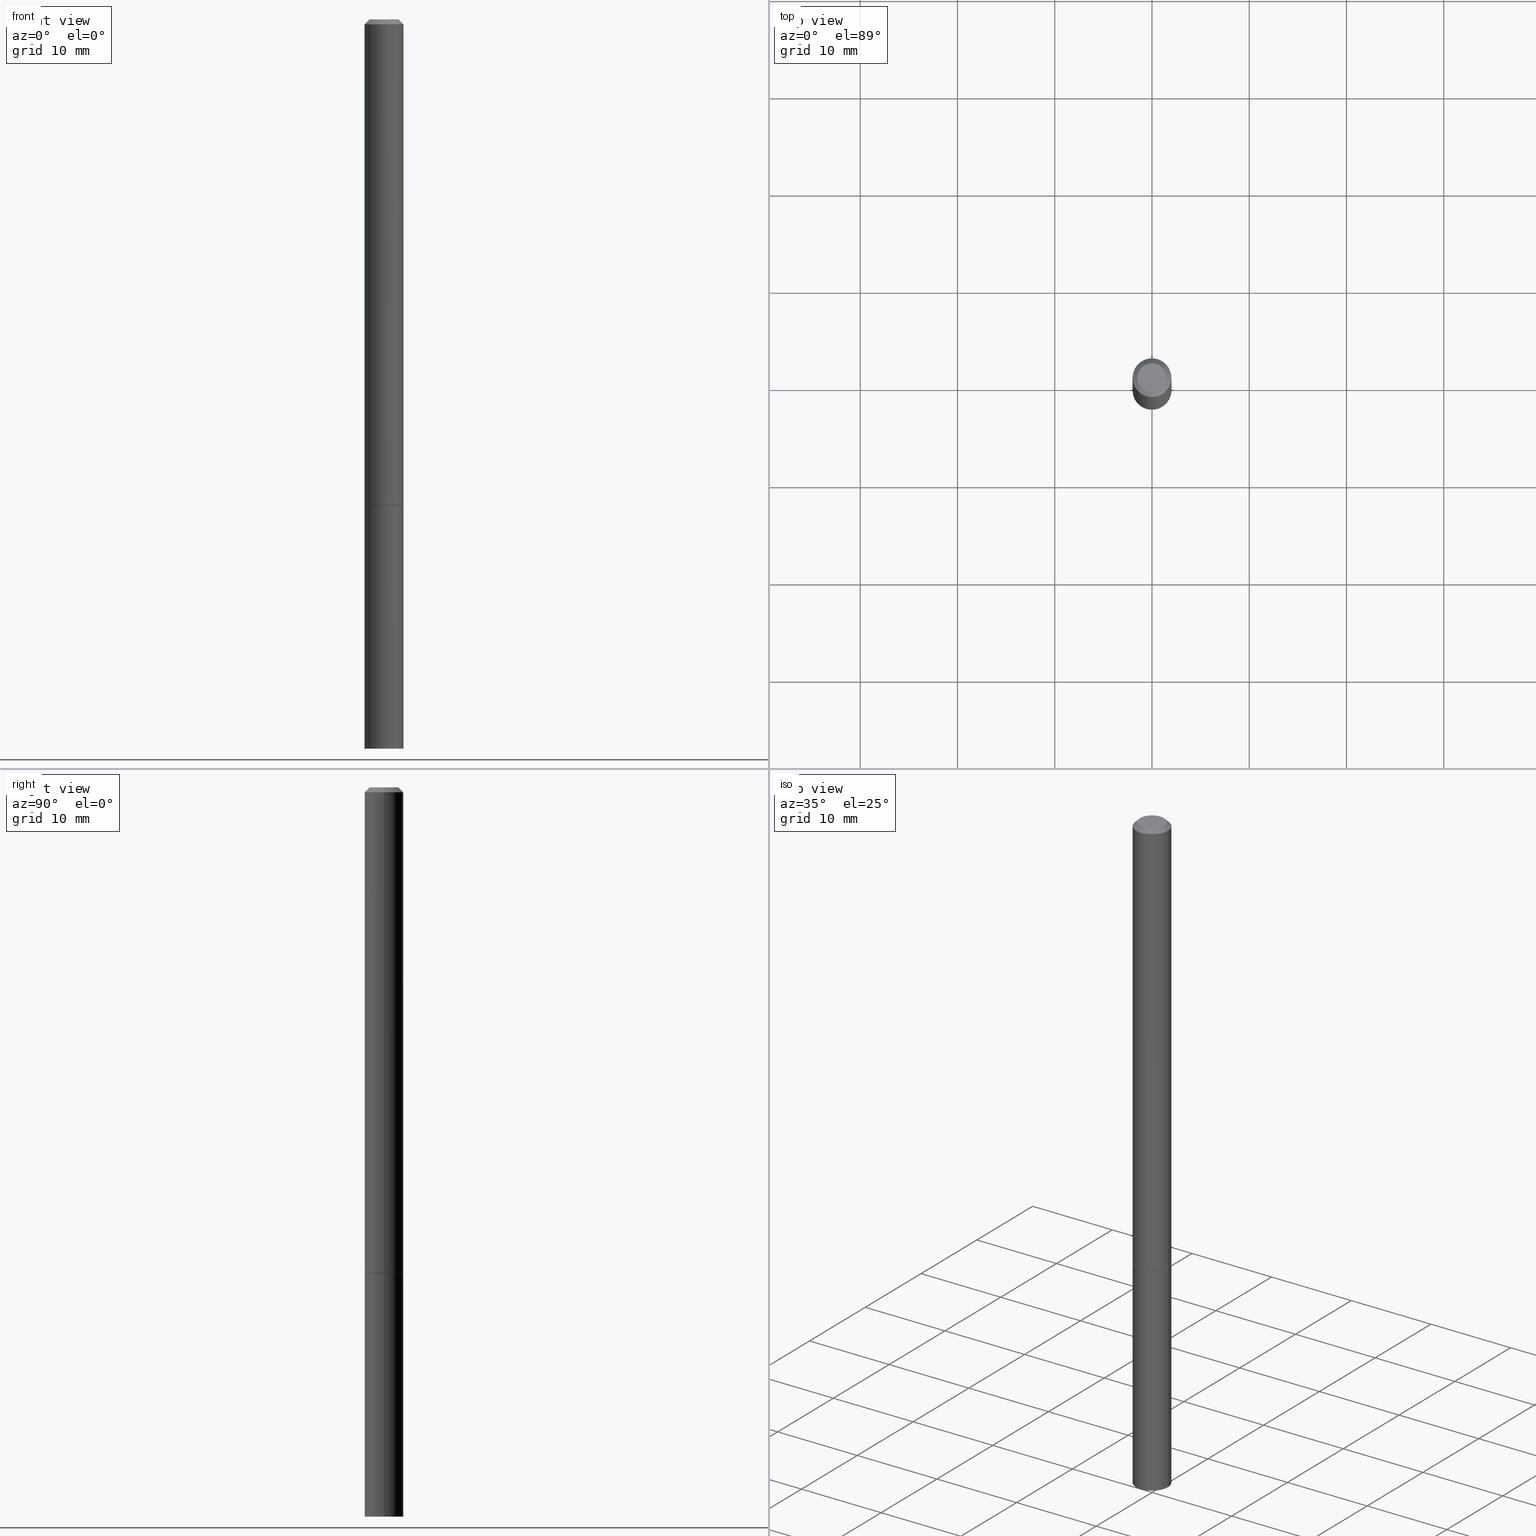
[diagram: canonical four-view strip — front | top / right | iso, engineering-drawing reading convention]
A machine part, canonical four-view strip (front | top / right | iso — engineering-drawing reading convention). The complete STEP part file that produces these views, byte-faithful:
ISO-10303-21;
HEADER;
FILE_DESCRIPTION (( 'STEP AP203' ),
    '1' );
FILE_NAME ('49415.STEP',
    '2024-02-28T19:48:44',
    ( '' ),
    ( '' ),
    'SwSTEP 2.0',
    'SolidWorks 2023',
    '' );
FILE_SCHEMA (( 'CONFIG_CONTROL_DESIGN' ));
ENDSEC;

DATA;
#1 = DIRECTION ( 'NONE',  ( -2.445468806185136597E-29, 3.491481338843145583E-15, 1.000000000000000000 ) ) ;
#2 = EDGE_CURVE ( 'NONE', #311, #247, #76, .T. ) ;
#3 = DIRECTION ( 'NONE',  ( -2.445468806185136597E-29, 3.491481338843145583E-15, 1.000000000000000000 ) ) ;
#4 = DIRECTION ( 'NONE',  ( 1.000000000000000000, -6.982962677686261977E-15, 0.000000000000000000 ) ) ;
#5 = VECTOR ( 'NONE', #321, 39.37007874015748143 ) ;
#6 = CARTESIAN_POINT ( 'NONE',  ( 0.07875000000000000056, -7.419397845041680468E-15, -1.967499999999999805 ) ) ;
#7 = APPLICATION_CONTEXT ( 'configuration controlled 3d designs of mechanical parts and assemblies' ) ;
#8 = VECTOR ( 'NONE', #153, 39.37007874015748143 ) ;
#9 = PERSON ( 'UNSPECIFIED', 'UNSPECIFIED', 'UNSPECIFIED', ('UNSPECIFIED'), ('UNSPECIFIED'), ('UNSPECIFIED') ) ;
#10 = DIRECTION ( 'NONE',  ( 1.000000000000000000, -6.982962677686261977E-15, 0.000000000000000000 ) ) ;
#11 = EDGE_CURVE ( 'NONE', #247, #311, #126, .T. ) ;
#12 = DIRECTION ( 'NONE',  ( 1.000000000000000000, -6.982962677686266711E-15, 0.000000000000000000 ) ) ;
#13 = VERTEX_POINT ( 'NONE', #6 ) ;
#14 = PERSON_AND_ORGANIZATION ( #9, #259 ) ;
#15 = DIRECTION ( 'NONE',  ( -2.445468806185136877E-29, 3.491481338843145188E-15, 1.000000000000000000 ) ) ;
#16 = AXIS2_PLACEMENT_3D ( 'NONE', #339, #364, #292 ) ;
#17 = LOCAL_TIME ( 14, 48, 44.00000000000000000, #366 ) ;
#18 = ORIENTED_EDGE ( 'NONE', *, *, #230, .F. ) ;
#19 = CC_DESIGN_DATE_AND_TIME_ASSIGNMENT ( #33, #67, ( #303 ) ) ;
#20 = DIRECTION ( 'NONE',  ( 1.000000000000000000, 0.000000000000000000, 0.000000000000000000 ) ) ;
#21 = CARTESIAN_POINT ( 'NONE',  ( 0.07774999999999999967, -7.415906363702837461E-15, -1.968499999999999694 ) ) ;
#22 = FACE_OUTER_BOUND ( 'NONE', #132, .T. ) ;
#23 = CLOSED_SHELL ( 'NONE', ( #185, #78, #249, #238 ) ) ;
#24 = CIRCLE ( 'NONE', #323, 0.07875000000000000056 ) ;
#25 = LOCAL_TIME ( 14, 48, 44.00000000000000000, #361 ) ;
#26 = DIRECTION ( 'NONE',  ( -2.445468806185136877E-29, 3.491481338843145188E-15, 1.000000000000000000 ) ) ;
#27 = DATE_AND_TIME ( #176, #25 ) ;
#28 = APPROVAL_STATUS ( 'not_yet_approved' ) ;
#29 = VECTOR ( 'NONE', #26, 39.37007874015748143 ) ;
#30 = CARTESIAN_POINT ( 'NONE',  ( 0.05874999999999976769, -5.065740507352226296E-16, 3.205406768517973136E-30 ) ) ;
#31 = DATE_AND_TIME ( #35, #320 ) ;
#32 = CARTESIAN_POINT ( 'NONE',  ( -0.07774999999999999967, -6.320534038459253125E-15, -1.968499999999999694 ) ) ;
#33 = DATE_AND_TIME ( #72, #255 ) ;
#34 = DIRECTION ( 'NONE',  ( 1.000000000000000000, -6.982962677686266711E-15, 4.876176775795935793E-29 ) ) ;
#35 = CALENDAR_DATE ( 2024, 28, 2 ) ;
#36 = EDGE_CURVE ( 'NONE', #108, #80, #325, .T. ) ;
#37 = EDGE_LOOP ( 'NONE', ( #188, #18 ) ) ;
#38 = AXIS2_PLACEMENT_3D ( 'NONE', #91, #207, #83 ) ;
#39 = COORDINATED_UNIVERSAL_TIME_OFFSET ( 5, 0, .BEHIND. ) ;
#40 = FACE_OUTER_BOUND ( 'NONE', #160, .T. ) ;
#41 = CARTESIAN_POINT ( 'NONE',  ( 4.813905344975440714E-29, -6.872981015512730918E-15, -1.968499999999999694 ) ) ;
#42 = LENGTH_MEASURE_WITH_UNIT ( LENGTH_MEASURE( 0.02539999999999999897 ), #209 );
#43 = EDGE_LOOP ( 'NONE', ( #245, #197, #74, #355 ) ) ;
#44 = ORIENTED_EDGE ( 'NONE', *, *, #137, .T. ) ;
#45 = ORIENTED_EDGE ( 'NONE', *, *, #2, .F. ) ;
#46 = EDGE_CURVE ( 'NONE', #252, #70, #349, .T. ) ;
#47 = EDGE_CURVE ( 'NONE', #70, #68, #220, .T. ) ;
#48 = DIRECTION ( 'NONE',  ( 0.7071067811865232589, -2.468850131082003836E-15, 0.7071067811865715536 ) ) ;
#49 = VERTEX_POINT ( 'NONE', #99 ) ;
#50 = ADVANCED_FACE ( 'NONE', ( #129 ), #192, .F. ) ;
#51 = ORIENTED_EDGE ( 'NONE', *, *, #147, .F. ) ;
#52 = AXIS2_PLACEMENT_3D ( 'NONE', #180, #3, #124 ) ;
#53 = APPROVAL_PERSON_ORGANIZATION ( #14, #344, #92 ) ;
#54 = FACE_OUTER_BOUND ( 'NONE', #79, .T. ) ;
#55 = DIMENSIONAL_EXPONENTS ( 1.000000000000000000, 0.000000000000000000, 0.000000000000000000, 0.000000000000000000, 0.000000000000000000, 0.000000000000000000, 0.000000000000000000 ) ;
#56 = CARTESIAN_POINT ( 'NONE',  ( 4.811459876169255671E-29, -6.869489534173887122E-15, -1.967499999999999805 ) ) ;
#57 = CARTESIAN_POINT ( 'NONE',  ( -0.07875000000000000056, -2.910107176064290492E-15, -1.967499999999999805 ) ) ;
#58 = LOCAL_TIME ( 14, 48, 44.00000000000000000, #114 ) ;
#59 = PLANE ( 'NONE',  #358 ) ;
#60 = PERSON_AND_ORGANIZATION_ROLE ( 'design_supplier' ) ;
#61 = CARTESIAN_POINT ( 'NONE',  ( 0.07874999999999973688, -6.100938441013694129E-16, -0.02000000000000001776 ) ) ;
#62 = EDGE_CURVE ( 'NONE', #13, #252, #161, .T. ) ;
#63 = CARTESIAN_POINT ( 'NONE',  ( 4.813905344975440714E-29, -6.872981015512730918E-15, -1.968499999999999694 ) ) ;
#64 = CIRCLE ( 'NONE', #199, 0.07774999999999999967 ) ;
#65 = CARTESIAN_POINT ( 'NONE',  ( 0.000000000000000000, 0.000000000000000000, 0.000000000000000000 ) ) ;
#66 = EDGE_CURVE ( 'NONE', #68, #70, #121, .T. ) ;
#67 = DATE_TIME_ROLE ( 'classification_date' ) ;
#68 = VERTEX_POINT ( 'NONE', #280 ) ;
#69 = PLANE ( 'NONE',  #283 ) ;
#70 = VERTEX_POINT ( 'NONE', #110 ) ;
#71 = AXIS2_PLACEMENT_3D ( 'NONE', #85, #177, #319 ) ;
#72 = CALENDAR_DATE ( 2024, 28, 2 ) ;
#73 = CARTESIAN_POINT ( 'NONE',  ( -0.07774999999999999967, -6.315235584111030723E-15, -1.968499999999999694 ) ) ;
#74 = ORIENTED_EDGE ( 'NONE', *, *, #260, .F. ) ;
#75 = ORIENTED_EDGE ( 'NONE', *, *, #11, .T. ) ;
#76 = CIRCLE ( 'NONE', #288, 0.05874999999999976769 ) ;
#77 =( GEOMETRIC_REPRESENTATION_CONTEXT ( 3 ) GLOBAL_UNCERTAINTY_ASSIGNED_CONTEXT ( ( #131 ) ) GLOBAL_UNIT_ASSIGNED_CONTEXT ( ( #133, #104, #327 ) ) REPRESENTATION_CONTEXT ( 'NONE', 'WORKASPACE' ) );
#78 = ADVANCED_FACE ( 'NONE', ( #282 ), #228, .T. ) ;
#79 = EDGE_LOOP ( 'NONE', ( #227, #328, #279, #217 ) ) ;
#80 = VERTEX_POINT ( 'NONE', #109 ) ;
#81 = VECTOR ( 'NONE', #15, 39.37007874015748143 ) ;
#82 = DIRECTION ( 'NONE',  ( 1.000000000000000000, -6.982962677686265922E-15, 4.876176775795935793E-29 ) ) ;
#83 = DIRECTION ( 'NONE',  ( 1.000000000000000000, -6.982962677686265922E-15, 4.876176775795935232E-29 ) ) ;
#84 = MANIFOLD_SOLID_BREP ( 'Body-Move/Copy2[1]', #23 ) ;
#85 = CARTESIAN_POINT ( 'NONE',  ( 0.000000000000000000, 0.000000000000000000, 0.000000000000000000 ) ) ;
#86 = MANIFOLD_SOLID_BREP ( 'Body-Move/Copy2[2]', #93 ) ;
#87 = PERSON_AND_ORGANIZATION ( #9, #259 ) ;
#88 = CONICAL_SURFACE ( 'NONE', #242, 0.07774999999999999967, 0.7853981633974141952 ) ;
#89 = CARTESIAN_POINT ( 'NONE',  ( 5.499083108678415648E-16, 0.07874999999999311717, -1.968500000000000139 ) ) ;
#90 = CC_DESIGN_PERSON_AND_ORGANIZATION_ASSIGNMENT ( #293, #149, ( #303 ) ) ;
#91 = CARTESIAN_POINT ( 'NONE',  ( 0.000000000000000000, 0.000000000000000000, 0.000000000000000000 ) ) ;
#92 = APPROVAL_ROLE ( '' ) ;
#93 = CLOSED_SHELL ( 'NONE', ( #178, #202, #113, #309, #127, #265, #50, #294 ) ) ;
#94 = APPROVAL_PERSON_ORGANIZATION ( #120, #223, #143 ) ;
#95 = DIRECTION ( 'NONE',  ( -1.000000000000000000, 6.982962677686266711E-15, 0.000000000000000000 ) ) ;
#96 = EDGE_CURVE ( 'NONE', #225, #356, #64, .T. ) ;
#97 = DIRECTION ( 'NONE',  ( -2.445468806185136597E-29, 3.491481338843145583E-15, 1.000000000000000000 ) ) ;
#98 = CARTESIAN_POINT ( 'NONE',  ( 4.890937612370276662E-31, -6.982962677686296539E-17, -0.02000000000000001776 ) ) ;
#99 = CARTESIAN_POINT ( 'NONE',  ( 0.07875000000000000056, -7.422889326380523475E-15, -1.968499999999999694 ) ) ;
#100 = CIRCLE ( 'NONE', #155, 0.07774999999999999967 ) ;
#101 = CIRCLE ( 'NONE', #16, 0.07875000000000000056 ) ;
#102 = ORIENTED_EDGE ( 'NONE', *, *, #66, .F. ) ;
#103 = EDGE_CURVE ( 'NONE', #225, #13, #200, .T. ) ;
#104 =( NAMED_UNIT ( * ) PLANE_ANGLE_UNIT ( ) SI_UNIT ( $, .RADIAN. ) );
#105 = EDGE_LOOP ( 'NONE', ( #164, #276 ) ) ;
#106 = DIRECTION ( 'NONE',  ( 1.000000000000000000, -6.982962677686266711E-15, 4.876176775795935793E-29 ) ) ;
#107 = ORIENTED_EDGE ( 'NONE', *, *, #96, .F. ) ;
#108 = VERTEX_POINT ( 'NONE', #139 ) ;
#109 = CARTESIAN_POINT ( 'NONE',  ( -0.07875000000000000056, -8.031761152013305527E-15, -1.968499999999999694 ) ) ;
#110 = CARTESIAN_POINT ( 'NONE',  ( -0.07874999999999973688, 4.800786840909286670E-16, -0.02000000000000001776 ) ) ;
#111 = DESIGN_CONTEXT ( 'detailed design', #7, 'design' ) ;
#112 = AXIS2_PLACEMENT_3D ( 'NONE', #351, #215, #95 ) ;
#113 = ADVANCED_FACE ( 'NONE', ( #54 ), #236, .T. ) ;
#114 = COORDINATED_UNIVERSAL_TIME_OFFSET ( 5, 0, .BEHIND. ) ;
#115 = DIRECTION ( 'NONE',  ( 1.000000000000000000, -6.982962677686266711E-15, 0.000000000000000000 ) ) ;
#116 = PERSON_AND_ORGANIZATION_ROLE ( 'creator' ) ;
#117 = DIRECTION ( 'NONE',  ( 1.000000000000000000, -6.982962677686261977E-15, 0.000000000000000000 ) ) ;
#118 = DATE_AND_TIME ( #146, #17 ) ;
#119 = FACE_OUTER_BOUND ( 'NONE', #216, .T. ) ;
#120 = PERSON_AND_ORGANIZATION ( #9, #259 ) ;
#121 = CIRCLE ( 'NONE', #167, 0.07874999999999973688 ) ;
#122 = CC_DESIGN_APPROVAL ( #204, ( #284 ) ) ;
#123 = CALENDAR_DATE ( 2024, 28, 2 ) ;
#124 = DIRECTION ( 'NONE',  ( 1.000000000000000000, -6.982962677686261977E-15, 0.000000000000000000 ) ) ;
#125 = COORDINATED_UNIVERSAL_TIME_OFFSET ( 5, 0, .BEHIND. ) ;
#126 = CIRCLE ( 'NONE', #330, 0.05874999999999976769 ) ;
#127 = ADVANCED_FACE ( 'NONE', ( #22 ), #142, .T. ) ;
#128 = CARTESIAN_POINT ( 'NONE',  ( -0.07874999999999987566, 5.595524044110780128E-16, -3.873661383575732186E-30 ) ) ;
#129 = FACE_OUTER_BOUND ( 'NONE', #248, .T. ) ;
#130 = ORIENTED_EDGE ( 'NONE', *, *, #96, .T. ) ;
#131 = UNCERTAINTY_MEASURE_WITH_UNIT (LENGTH_MEASURE( 1.000000000000000082E-05 ), #133, 'distance_accuracy_value', 'NONE');
#132 = EDGE_LOOP ( 'NONE', ( #304, #44, #194, #138 ) ) ;
#133 =( CONVERSION_BASED_UNIT ( 'INCH', #42 ) LENGTH_UNIT ( ) NAMED_UNIT ( #55 ) );
#134 = CONICAL_SURFACE ( 'NONE', #52, 0.07774999999999999967, 0.7853981633974141952 ) ;
#135 = ORIENTED_EDGE ( 'NONE', *, *, #211, .F. ) ;
#136 = ORIENTED_EDGE ( 'NONE', *, *, #170, .F. ) ;
#137 = EDGE_CURVE ( 'NONE', #252, #13, #24, .T. ) ;
#138 = ORIENTED_EDGE ( 'NONE', *, *, #47, .F. ) ;
#139 = CARTESIAN_POINT ( 'NONE',  ( -0.07875000000000000056, -8.031761152013305527E-15, -2.952799999999999869 ) ) ;
#140 = CIRCLE ( 'NONE', #353, 0.07875000000000000056 ) ;
#141 = ADVANCED_BREP_SHAPE_REPRESENTATION ( '49415', ( #84, #86, #221 ), #77 ) ;
#142 = CYLINDRICAL_SURFACE ( 'NONE', #71, 0.07874999999999987566 ) ;
#143 = APPROVAL_ROLE ( '' ) ;
#144 = AXIS2_PLACEMENT_3D ( 'NONE', #269, #342, #117 ) ;
#145 = CYLINDRICAL_SURFACE ( 'NONE', #253, 0.07875000000000000056 ) ;
#146 = CALENDAR_DATE ( 2024, 28, 2 ) ;
#147 = EDGE_CURVE ( 'NONE', #13, #68, #289, .T. ) ;
#148 = DIRECTION ( 'NONE',  ( 1.000000000000000000, -6.982962677686261977E-15, 0.000000000000000000 ) ) ;
#149 = PERSON_AND_ORGANIZATION_ROLE ( 'classification_officer' ) ;
#150 = DIRECTION ( 'NONE',  ( 1.000000000000000000, -6.982962677686266711E-15, 4.876176775795935793E-29 ) ) ;
#151 = AXIS2_PLACEMENT_3D ( 'NONE', #237, #233, #150 ) ;
#152 = DIRECTION ( 'NONE',  ( -2.445468806185136597E-29, 3.491481338843145583E-15, 1.000000000000000000 ) ) ;
#153 = DIRECTION ( 'NONE',  ( -0.7071067811865467956, 2.468850131082249172E-15, -0.7071067811865482389 ) ) ;
#154 = ORIENTED_EDGE ( 'NONE', *, *, #36, .F. ) ;
#155 = AXIS2_PLACEMENT_3D ( 'NONE', #313, #1, #264 ) ;
#156 = ORIENTED_EDGE ( 'NONE', *, *, #281, .F. ) ;
#157 = ORIENTED_EDGE ( 'NONE', *, *, #62, .F. ) ;
#158 = CARTESIAN_POINT ( 'NONE',  ( -0.05874999999999976769, 4.451638707024976095E-16, -2.990994270918715236E-30 ) ) ;
#159 = ORIENTED_EDGE ( 'NONE', *, *, #2, .T. ) ;
#160 = EDGE_LOOP ( 'NONE', ( #159, #75 ) ) ;
#161 = CIRCLE ( 'NONE', #266, 0.07875000000000000056 ) ;
#162 = EDGE_LOOP ( 'NONE', ( #130, #218, #157, #326 ) ) ;
#163 = DIRECTION ( 'NONE',  ( -2.445468806185136597E-29, 3.491481338843145583E-15, 1.000000000000000000 ) ) ;
#164 = ORIENTED_EDGE ( 'NONE', *, *, #260, .T. ) ;
#165 = PRODUCT_DEFINITION_SHAPE ( 'NONE', 'NONE',  #290 ) ;
#166 = CARTESIAN_POINT ( 'NONE',  ( 4.890937612370276662E-31, -6.982962677686296539E-17, -0.02000000000000001776 ) ) ;
#167 = AXIS2_PLACEMENT_3D ( 'NONE', #166, #360, #115 ) ;
#168 = MECHANICAL_CONTEXT ( 'NONE', #357, 'mechanical' ) ;
#169 = CARTESIAN_POINT ( 'NONE',  ( 4.890937612370276662E-31, -6.982962677686296539E-17, -0.02000000000000001776 ) ) ;
#170 = EDGE_CURVE ( 'NONE', #247, #68, #261, .T. ) ;
#171 = DIRECTION ( 'NONE',  ( -2.445468806185136597E-29, 3.491481338843145583E-15, 1.000000000000000000 ) ) ;
#172 = CARTESIAN_POINT ( 'NONE',  ( 4.813905344975440714E-29, -6.872981015512730918E-15, -1.968499999999999694 ) ) ;
#173 = VECTOR ( 'NONE', #244, 39.37007874015748143 ) ;
#174 = AXIS2_PLACEMENT_3D ( 'NONE', #98, #277, #12 ) ;
#175 = CC_DESIGN_APPROVAL ( #223, ( #290 ) ) ;
#176 = CALENDAR_DATE ( 2024, 28, 2 ) ;
#177 = DIRECTION ( 'NONE',  ( -2.445468806185136597E-29, 3.491481338843145583E-15, 1.000000000000000000 ) ) ;
#178 = ADVANCED_FACE ( 'NONE', ( #347 ), #134, .T. ) ;
#179 = PERSON_AND_ORGANIZATION ( #9, #259 ) ;
#180 = CARTESIAN_POINT ( 'NONE',  ( 4.813905344975440714E-29, -6.872981015512730918E-15, -1.968499999999999694 ) ) ;
#181 = EDGE_LOOP ( 'NONE', ( #154, #251, #333, #156 ) ) ;
#182 = SECURITY_CLASSIFICATION_LEVEL ( 'unclassified' ) ;
#183 = DIRECTION ( 'NONE',  ( -2.445468806185136597E-29, 3.491481338843145583E-15, 1.000000000000000000 ) ) ;
#184 = CARTESIAN_POINT ( 'NONE',  ( 4.811459876169255671E-29, -6.869489534173887122E-15, -1.967499999999999805 ) ) ;
#185 = ADVANCED_FACE ( 'NONE', ( #203 ), #145, .T. ) ;
#186 = DIRECTION ( 'NONE',  ( -2.445468806185136597E-29, 3.491481338843145583E-15, 1.000000000000000000 ) ) ;
#187 = CARTESIAN_POINT ( 'NONE',  ( 0.07875000000000000056, -1.085955440820383187E-14, -2.952799999999999869 ) ) ;
#188 = ORIENTED_EDGE ( 'NONE', *, *, #195, .F. ) ;
#189 = APPROVAL_DATE_TIME ( #31, #344 ) ;
#190 = DIRECTION ( 'NONE',  ( -1.000000000000000000, 6.982962677686265922E-15, -4.876176775795935793E-29 ) ) ;
#191 = CC_DESIGN_SECURITY_CLASSIFICATION ( #303, ( #284 ) ) ;
#192 = PLANE ( 'NONE',  #302 ) ;
#193 = ORIENTED_EDGE ( 'NONE', *, *, #316, .T. ) ;
#194 = ORIENTED_EDGE ( 'NONE', *, *, #147, .T. ) ;
#195 = EDGE_CURVE ( 'NONE', #352, #108, #315, .T. ) ;
#196 = DIRECTION ( 'NONE',  ( -2.438088387897960049E-29, 3.491481338843145188E-15, 1.000000000000000000 ) ) ;
#197 = ORIENTED_EDGE ( 'NONE', *, *, #36, .T. ) ;
#198 = DIRECTION ( 'NONE',  ( 0.000000000000000000, 0.000000000000000000, 1.000000000000000000 ) ) ;
#199 = AXIS2_PLACEMENT_3D ( 'NONE', #329, #163, #331 ) ;
#200 = LINE ( 'NONE', #21, #312 ) ;
#201 = DIRECTION ( 'NONE',  ( -0.7071067811865232589, 7.493145998870265808E-15, 0.7071067811865715536 ) ) ;
#202 = ADVANCED_FACE ( 'NONE', ( #270 ), #295, .T. ) ;
#203 = FACE_OUTER_BOUND ( 'NONE', #43, .T. ) ;
#204 = APPROVAL ( #28, 'UNSPECIFIED' ) ;
#205 = CIRCLE ( 'NONE', #365, 0.07875000000000000056 ) ;
#206 = DIRECTION ( 'NONE',  ( 1.000000000000000000, -6.982962677686265922E-15, 4.876176775795935232E-29 ) ) ;
#207 = DIRECTION ( 'NONE',  ( -2.445468806185136597E-29, 3.491481338843145583E-15, 1.000000000000000000 ) ) ;
#208 = CARTESIAN_POINT ( 'NONE',  ( -0.07874999999999973688, 4.800786840909286670E-16, -0.02000000000000001776 ) ) ;
#209 =( LENGTH_UNIT ( ) NAMED_UNIT ( * ) SI_UNIT ( $, .METRE. ) );
#210 = ORIENTED_EDGE ( 'NONE', *, *, #103, .T. ) ;
#211 = EDGE_CURVE ( 'NONE', #356, #225, #100, .T. ) ;
#212 = SHAPE_DEFINITION_REPRESENTATION ( #165, #141 ) ;
#213 = ORIENTED_EDGE ( 'NONE', *, *, #211, .T. ) ;
#214 = AXIS2_PLACEMENT_3D ( 'NONE', #169, #286, #254 ) ;
#215 = DIRECTION ( 'NONE',  ( 2.445468806185136597E-29, -3.491481338843145583E-15, -1.000000000000000000 ) ) ;
#216 = EDGE_LOOP ( 'NONE', ( #299, #213, #210, #359 ) ) ;
#217 = ORIENTED_EDGE ( 'NONE', *, *, #316, .F. ) ;
#218 = ORIENTED_EDGE ( 'NONE', *, *, #226, .T. ) ;
#219 = DIRECTION ( 'NONE',  ( -2.445468806185136597E-29, 3.491481338843145583E-15, 1.000000000000000000 ) ) ;
#220 = CIRCLE ( 'NONE', #174, 0.07874999999999973688 ) ;
#221 = AXIS2_PLACEMENT_3D ( 'NONE', #310, #198, #20 ) ;
#222 = DIRECTION ( 'NONE',  ( -1.000000000000000000, 6.982962677686265922E-15, -4.876176775795935793E-29 ) ) ;
#223 = APPROVAL ( #268, 'UNSPECIFIED' ) ;
#224 = CC_DESIGN_APPROVAL ( #344, ( #303 ) ) ;
#225 = VERTEX_POINT ( 'NONE', #239 ) ;
#226 = EDGE_CURVE ( 'NONE', #356, #252, #231, .T. ) ;
#227 = ORIENTED_EDGE ( 'NONE', *, *, #11, .F. ) ;
#228 = PLANE ( 'NONE',  #308 ) ;
#229 = PERSON_AND_ORGANIZATION ( #9, #259 ) ;
#230 = EDGE_CURVE ( 'NONE', #108, #352, #101, .T. ) ;
#231 = LINE ( 'NONE', #32, #267 ) ;
#232 = APPROVAL_DATE_TIME ( #263, #204 ) ;
#233 = DIRECTION ( 'NONE',  ( -2.445468806185136597E-29, 3.491481338843145583E-15, 1.000000000000000000 ) ) ;
#234 = DATE_TIME_ROLE ( 'creation_date' ) ;
#235 = DIRECTION ( 'NONE',  ( -2.445468806185136597E-29, 3.491481338843145583E-15, 1.000000000000000000 ) ) ;
#236 = CONICAL_SURFACE ( 'NONE', #214, 0.07874999999999973688, 0.7853981633974472798 ) ;
#237 = CARTESIAN_POINT ( 'NONE',  ( 0.000000000000000000, 0.000000000000000000, 0.000000000000000000 ) ) ;
#238 = ADVANCED_FACE ( 'NONE', ( #314 ), #337, .T. ) ;
#239 = CARTESIAN_POINT ( 'NONE',  ( 0.07774999999999999967, -7.415906363702837461E-15, -1.968499999999999694 ) ) ;
#240 = CC_DESIGN_PERSON_AND_ORGANIZATION_ASSIGNMENT ( #229, #338, ( #284 ) ) ;
#241 = CARTESIAN_POINT ( 'NONE',  ( 4.102490573140664535E-16, 0.05874999999999976769, -2.051245286570339909E-16 ) ) ;
#242 = AXIS2_PLACEMENT_3D ( 'NONE', #63, #183, #4 ) ;
#243 = CARTESIAN_POINT ( 'NONE',  ( 4.813905344975440714E-29, -6.872981015512730918E-15, -1.968499999999999694 ) ) ;
#244 = DIRECTION ( 'NONE',  ( -2.445468806185136877E-29, 3.491481338843145188E-15, 1.000000000000000000 ) ) ;
#245 = ORIENTED_EDGE ( 'NONE', *, *, #195, .T. ) ;
#246 = FACE_OUTER_BOUND ( 'NONE', #306, .T. ) ;
#247 = VERTEX_POINT ( 'NONE', #30 ) ;
#248 = EDGE_LOOP ( 'NONE', ( #107, #135 ) ) ;
#249 = ADVANCED_FACE ( 'NONE', ( #346 ), #59, .F. ) ;
#250 = CARTESIAN_POINT ( 'NONE',  ( 0.000000000000000000, 0.000000000000000000, 0.000000000000000000 ) ) ;
#251 = ORIENTED_EDGE ( 'NONE', *, *, #230, .T. ) ;
#252 = VERTEX_POINT ( 'NONE', #57 ) ;
#253 = AXIS2_PLACEMENT_3D ( 'NONE', #65, #362, #206 ) ;
#254 = DIRECTION ( 'NONE',  ( -1.000000000000000000, 6.982962677686266711E-15, 0.000000000000000000 ) ) ;
#255 = LOCAL_TIME ( 14, 48, 44.00000000000000000, #125 ) ;
#256 = CC_DESIGN_PERSON_AND_ORGANIZATION_ASSIGNMENT ( #87, #60, ( #284 ) ) ;
#257 = PERSON_AND_ORGANIZATION ( #9, #259 ) ;
#258 = DIRECTION ( 'NONE',  ( 1.000000000000000000, -6.982962677686261977E-15, 0.000000000000000000 ) ) ;
#259 = ORGANIZATION ( 'UNSPECIFIED', 'UNSPECIFIED', '' ) ;
#260 = EDGE_CURVE ( 'NONE', #49, #80, #205, .T. ) ;
#261 = LINE ( 'NONE', #61, #273 ) ;
#262 = DIRECTION ( 'NONE',  ( 1.000000000000000000, -6.982962677686261977E-15, 0.000000000000000000 ) ) ;
#263 = DATE_AND_TIME ( #123, #58 ) ;
#264 = DIRECTION ( 'NONE',  ( 1.000000000000000000, -6.982962677686261977E-15, 0.000000000000000000 ) ) ;
#265 = ADVANCED_FACE ( 'NONE', ( #119 ), #88, .T. ) ;
#266 = AXIS2_PLACEMENT_3D ( 'NONE', #56, #171, #258 ) ;
#267 = VECTOR ( 'NONE', #201, 39.37007874015748854 ) ;
#268 = APPROVAL_STATUS ( 'not_yet_approved' ) ;
#269 = CARTESIAN_POINT ( 'NONE',  ( 7.220980290903470182E-29, -1.030964609733603853E-14, -2.952799999999999869 ) ) ;
#270 = FACE_OUTER_BOUND ( 'NONE', #272, .T. ) ;
#271 = APPROVAL_STATUS ( 'not_yet_approved' ) ;
#272 = EDGE_LOOP ( 'NONE', ( #322, #301, #102, #51 ) ) ;
#273 = VECTOR ( 'NONE', #363, 39.37007874015748143 ) ;
#274 = CC_DESIGN_PERSON_AND_ORGANIZATION_ASSIGNMENT ( #345, #116, ( #290 ) ) ;
#275 = CARTESIAN_POINT ( 'NONE',  ( 0.07875000000000000056, -5.499083108677934443E-16, 3.839989210939299016E-30 ) ) ;
#276 = ORIENTED_EDGE ( 'NONE', *, *, #281, .T. ) ;
#277 = DIRECTION ( 'NONE',  ( -2.445468806185136597E-29, 3.491481338843145583E-15, 1.000000000000000000 ) ) ;
#278 = APPLICATION_PROTOCOL_DEFINITION ( 'international standard', 'config_control_design', 1994, #357 ) ;
#279 = ORIENTED_EDGE ( 'NONE', *, *, #66, .T. ) ;
#280 = CARTESIAN_POINT ( 'NONE',  ( 0.07874999999999973688, -6.100938441013694129E-16, -0.02000000000000001776 ) ) ;
#281 = EDGE_CURVE ( 'NONE', #80, #49, #140, .T. ) ;
#282 = FACE_OUTER_BOUND ( 'NONE', #37, .T. ) ;
#283 = AXIS2_PLACEMENT_3D ( 'NONE', #241, #300, #190 ) ;
#284 = PRODUCT_DEFINITION_FORMATION_WITH_SPECIFIED_SOURCE ( 'ANY', '', #285, .NOT_KNOWN. ) ;
#285 = PRODUCT ( '49415', '49415', '', ( #168 ) ) ;
#286 = DIRECTION ( 'NONE',  ( 2.445468806185136597E-29, -3.491481338843145583E-15, -1.000000000000000000 ) ) ;
#287 = APPLICATION_PROTOCOL_DEFINITION ( 'international standard', 'config_control_design', 1994, #7 ) ;
#288 = AXIS2_PLACEMENT_3D ( 'NONE', #250, #219, #106 ) ;
#289 = LINE ( 'NONE', #296, #29 ) ;
#290 = PRODUCT_DEFINITION ( 'UNKNOWN', '', #284, #111 ) ;
#291 = PERSON_AND_ORGANIZATION_ROLE ( 'design_owner' ) ;
#292 = DIRECTION ( 'NONE',  ( 1.000000000000000000, -6.982962677686261977E-15, 0.000000000000000000 ) ) ;
#293 = PERSON_AND_ORGANIZATION ( #9, #259 ) ;
#294 = ADVANCED_FACE ( 'NONE', ( #40 ), #69, .F. ) ;
#295 = CYLINDRICAL_SURFACE ( 'NONE', #151, 0.07874999999999987566 ) ;
#296 = CARTESIAN_POINT ( 'NONE',  ( 0.07874999999999987566, -5.499083108677926554E-16, 3.839989210939293411E-30 ) ) ;
#297 = ORIENTED_EDGE ( 'NONE', *, *, #47, .T. ) ;
#298 = DIRECTION ( 'NONE',  ( -1.000000000000000000, 6.982962677686265922E-15, -4.876176775795935793E-29 ) ) ;
#299 = ORIENTED_EDGE ( 'NONE', *, *, #226, .F. ) ;
#300 = DIRECTION ( 'NONE',  ( 2.438088387897960049E-29, -3.491481338843145188E-15, -1.000000000000000000 ) ) ;
#301 = ORIENTED_EDGE ( 'NONE', *, *, #46, .T. ) ;
#302 = AXIS2_PLACEMENT_3D ( 'NONE', #41, #196, #82 ) ;
#303 = SECURITY_CLASSIFICATION ( '', '', #182 ) ;
#304 = ORIENTED_EDGE ( 'NONE', *, *, #46, .F. ) ;
#305 = CARTESIAN_POINT ( 'NONE',  ( 0.000000000000000000, 0.000000000000000000, 0.000000000000000000 ) ) ;
#306 = EDGE_LOOP ( 'NONE', ( #136, #45, #193, #297 ) ) ;
#307 = PRODUCT_RELATED_PRODUCT_CATEGORY ( 'detail', '', ( #285 ) ) ;
#308 = AXIS2_PLACEMENT_3D ( 'NONE', #336, #334, #222 ) ;
#309 = ADVANCED_FACE ( 'NONE', ( #246 ), #335, .T. ) ;
#310 = CARTESIAN_POINT ( 'NONE',  ( 0.000000000000000000, 0.000000000000000000, 0.000000000000000000 ) ) ;
#311 = VERTEX_POINT ( 'NONE', #158 ) ;
#312 = VECTOR ( 'NONE', #48, 39.37007874015748854 ) ;
#313 = CARTESIAN_POINT ( 'NONE',  ( 4.813905344975440714E-29, -6.872981015512730918E-15, -1.968499999999999694 ) ) ;
#314 = FACE_OUTER_BOUND ( 'NONE', #181, .T. ) ;
#315 = CIRCLE ( 'NONE', #144, 0.07875000000000000056 ) ;
#316 = EDGE_CURVE ( 'NONE', #311, #70, #324, .T. ) ;
#317 = APPROVAL_DATE_TIME ( #27, #223 ) ;
#318 = DIRECTION ( 'NONE',  ( 2.438088387897960049E-29, -3.491481338843145188E-15, -1.000000000000000000 ) ) ;
#319 = DIRECTION ( 'NONE',  ( 1.000000000000000000, -6.982962677686266711E-15, 4.876176775795935793E-29 ) ) ;
#320 = LOCAL_TIME ( 14, 48, 44.00000000000000000, #39 ) ;
#321 = DIRECTION ( 'NONE',  ( -2.445468806185136877E-29, 3.491481338843145188E-15, 1.000000000000000000 ) ) ;
#322 = ORIENTED_EDGE ( 'NONE', *, *, #62, .T. ) ;
#323 = AXIS2_PLACEMENT_3D ( 'NONE', #184, #152, #148 ) ;
#324 = LINE ( 'NONE', #208, #8 ) ;
#325 = LINE ( 'NONE', #350, #173 ) ;
#326 = ORIENTED_EDGE ( 'NONE', *, *, #103, .F. ) ;
#327 =( NAMED_UNIT ( * ) SI_UNIT ( $, .STERADIAN. ) SOLID_ANGLE_UNIT ( ) );
#328 = ORIENTED_EDGE ( 'NONE', *, *, #170, .T. ) ;
#329 = CARTESIAN_POINT ( 'NONE',  ( 4.813905344975440714E-29, -6.872981015512730918E-15, -1.968499999999999694 ) ) ;
#330 = AXIS2_PLACEMENT_3D ( 'NONE', #305, #186, #34 ) ;
#331 = DIRECTION ( 'NONE',  ( 1.000000000000000000, -6.982962677686261977E-15, 0.000000000000000000 ) ) ;
#332 = CC_DESIGN_DATE_AND_TIME_ASSIGNMENT ( #118, #234, ( #290 ) ) ;
#333 = ORIENTED_EDGE ( 'NONE', *, *, #340, .T. ) ;
#334 = DIRECTION ( 'NONE',  ( 2.438088387897960049E-29, -3.491481338843145188E-15, -1.000000000000000000 ) ) ;
#335 = CONICAL_SURFACE ( 'NONE', #112, 0.07874999999999973688, 0.7853981633974472798 ) ;
#336 = CARTESIAN_POINT ( 'NONE',  ( 5.499083108678655265E-16, 0.07874999999998968936, -2.952800000000000313 ) ) ;
#337 = CYLINDRICAL_SURFACE ( 'NONE', #38, 0.07875000000000000056 ) ;
#338 = PERSON_AND_ORGANIZATION_ROLE ( 'creator' ) ;
#339 = CARTESIAN_POINT ( 'NONE',  ( 7.220980290903470182E-29, -1.030964609733603853E-14, -2.952799999999999869 ) ) ;
#340 = EDGE_CURVE ( 'NONE', #352, #49, #354, .T. ) ;
#341 = APPROVAL_ROLE ( '' ) ;
#342 = DIRECTION ( 'NONE',  ( -2.445468806185136597E-29, 3.491481338843145583E-15, 1.000000000000000000 ) ) ;
#343 = APPROVAL_PERSON_ORGANIZATION ( #257, #204, #341 ) ;
#344 = APPROVAL ( #271, 'UNSPECIFIED' ) ;
#345 = PERSON_AND_ORGANIZATION ( #9, #259 ) ;
#346 = FACE_OUTER_BOUND ( 'NONE', #105, .T. ) ;
#347 = FACE_OUTER_BOUND ( 'NONE', #162, .T. ) ;
#348 = CC_DESIGN_PERSON_AND_ORGANIZATION_ASSIGNMENT ( #179, #291, ( #285 ) ) ;
#349 = LINE ( 'NONE', #128, #5 ) ;
#350 = CARTESIAN_POINT ( 'NONE',  ( -0.07875000000000000056, 5.595524044110789003E-16, -3.873661383575737792E-30 ) ) ;
#351 = CARTESIAN_POINT ( 'NONE',  ( 4.890937612370276662E-31, -6.982962677686296539E-17, -0.02000000000000001776 ) ) ;
#352 = VERTEX_POINT ( 'NONE', #187 ) ;
#353 = AXIS2_PLACEMENT_3D ( 'NONE', #243, #97, #10 ) ;
#354 = LINE ( 'NONE', #275, #81 ) ;
#355 = ORIENTED_EDGE ( 'NONE', *, *, #340, .F. ) ;
#356 = VERTEX_POINT ( 'NONE', #73 ) ;
#357 = APPLICATION_CONTEXT ( 'configuration controlled 3d designs of mechanical parts and assemblies' ) ;
#358 = AXIS2_PLACEMENT_3D ( 'NONE', #89, #318, #298 ) ;
#359 = ORIENTED_EDGE ( 'NONE', *, *, #137, .F. ) ;
#360 = DIRECTION ( 'NONE',  ( -2.445468806185136597E-29, 3.491481338843145583E-15, 1.000000000000000000 ) ) ;
#361 = COORDINATED_UNIVERSAL_TIME_OFFSET ( 5, 0, .BEHIND. ) ;
#362 = DIRECTION ( 'NONE',  ( -2.445468806185136597E-29, 3.491481338843145583E-15, 1.000000000000000000 ) ) ;
#363 = DIRECTION ( 'NONE',  ( 0.7071067811865467956, -7.319954787623254468E-15, -0.7071067811865482389 ) ) ;
#364 = DIRECTION ( 'NONE',  ( -2.445468806185136597E-29, 3.491481338843145583E-15, 1.000000000000000000 ) ) ;
#365 = AXIS2_PLACEMENT_3D ( 'NONE', #172, #235, #262 ) ;
#366 = COORDINATED_UNIVERSAL_TIME_OFFSET ( 5, 0, .BEHIND. ) ;
ENDSEC;
END-ISO-10303-21;
